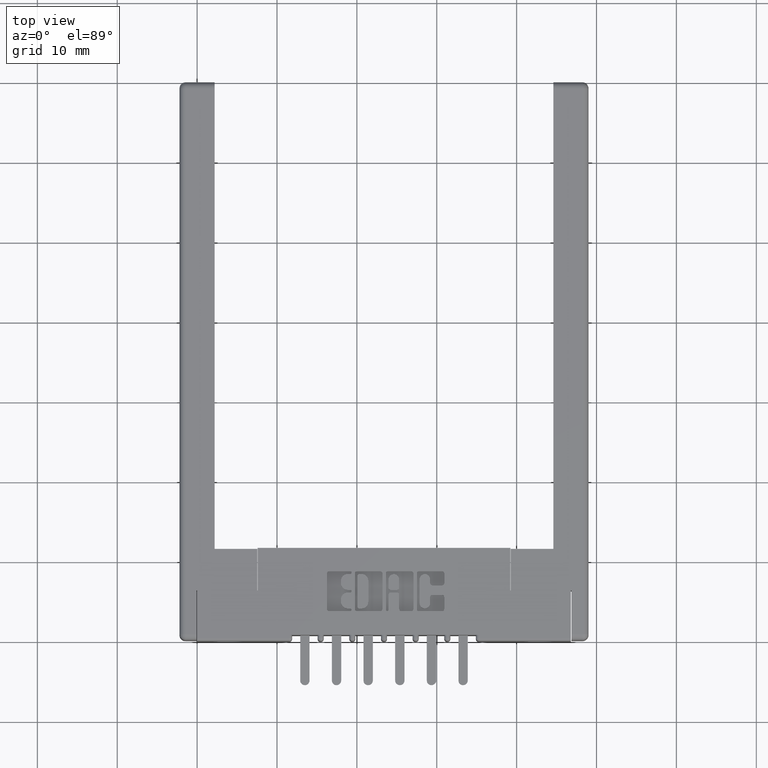
[diagram: clean part render]
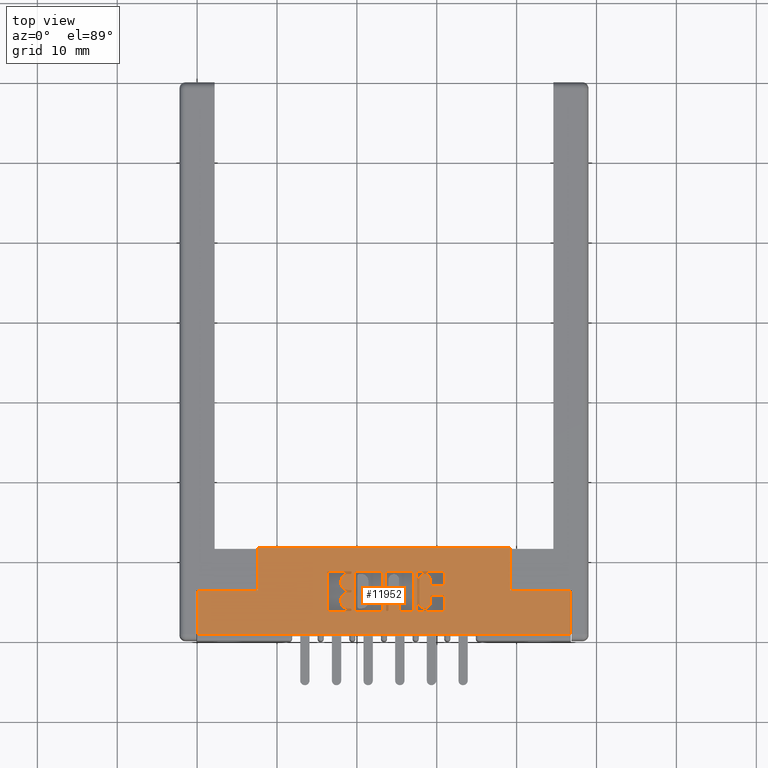
[diagram: same view with one face highlighted and labeled with its STEP entity id]
A machine part, top view. The second image highlights one B-rep face of the part: STEP entity #11952.
In plain terms, the highlighted planar face has unit normal (0, 0, -1).
Its self-contained STEP definition (entity closure, byte-faithful):
#7 = DIRECTION ( 'NONE',  ( 1.000000000000000000, 0.0000000000000000000, 0.0000000000000000000 ) ) ;
#25 = VERTEX_POINT ( 'NONE', #11827 ) ;
#96 = DIRECTION ( 'NONE',  ( -0.0000000000000000000, 0.0000000000000000000, 1.000000000000000000 ) ) ;
#103 = AXIS2_PLACEMENT_3D ( 'NONE', #5195, #5755, #12931 ) ;
#116 = VERTEX_POINT ( 'NONE', #2829 ) ;
#134 = CARTESIAN_POINT ( 'NONE',  ( 0.9394043816321276900, 0.3338410318342129300, 0.0000000000000000000 ) ) ;
#146 = AXIS2_PLACEMENT_3D ( 'NONE', #11146, #11671, #12352 ) ;
#172 = VERTEX_POINT ( 'NONE', #12545 ) ;
#173 = AXIS2_PLACEMENT_3D ( 'NONE', #8503, #12395, #12851 ) ;
#185 = VECTOR ( 'NONE', #6177, 39.37007874015748100 ) ;
#193 = AXIS2_PLACEMENT_3D ( 'NONE', #10360, #10257, #5744 ) ;
#202 = DIRECTION ( 'NONE',  ( 0.0000000000000000000, 0.0000000000000000000, -1.000000000000000000 ) ) ;
#205 = VERTEX_POINT ( 'NONE', #2532 ) ;
#220 = VECTOR ( 'NONE', #8466, 39.37007874015748100 ) ;
#233 = VECTOR ( 'NONE', #7161, 39.37007874015748100 ) ;
#336 = ORIENTED_EDGE ( 'NONE', *, *, #6337, .T. ) ;
#349 = VERTEX_POINT ( 'NONE', #3730 ) ;
#413 = VECTOR ( 'NONE', #7462, 39.37007874015748100 ) ;
#426 = VERTEX_POINT ( 'NONE', #3654 ) ;
#453 = ORIENTED_EDGE ( 'NONE', *, *, #6143, .T. ) ;
#457 = VERTEX_POINT ( 'NONE', #6432 ) ;
#465 = VERTEX_POINT ( 'NONE', #3961 ) ;
#471 = DIRECTION ( 'NONE',  ( -0.0000000000000000000, -1.000000000000000000, -0.0000000000000000000 ) ) ;
#480 = CARTESIAN_POINT ( 'NONE',  ( 0.6498421106199383500, 0.3436567020380355600, 0.0000000000000000000 ) ) ;
#484 = ORIENTED_EDGE ( 'NONE', *, *, #6292, .T. ) ;
#559 = CARTESIAN_POINT ( 'NONE',  ( 1.842000000000000700, 0.03100000000000000000, 0.0000000000000000000 ) ) ;
#574 = DIRECTION ( 'NONE',  ( -1.000000000000000000, -0.0000000000000000000, -0.0000000000000000000 ) ) ;
#594 = LINE ( 'NONE', #10863, #8683 ) ;
#599 = VERTEX_POINT ( 'NONE', #9982 ) ;
#609 = LINE ( 'NONE', #8518, #233 ) ;
#641 = DIRECTION ( 'NONE',  ( -1.000000000000000000, 0.0000000000000000000, 0.0000000000000000000 ) ) ;
#644 = AXIS2_PLACEMENT_3D ( 'NONE', #134, #96, #7 ) ;
#668 = VERTEX_POINT ( 'NONE', #7127 ) ;
#683 = CARTESIAN_POINT ( 'NONE',  ( 0.9025956183678624000, 0.1473432979619860000, 0.0000000000000000000 ) ) ;
#706 = CARTESIAN_POINT ( 'NONE',  ( 0.7541336065353102500, 0.2523709691426866400, 0.0000000000000000000 ) ) ;
#722 = CARTESIAN_POINT ( 'NONE',  ( 1.082222383097458900, 0.3338410318342129300, 0.0000000000000000000 ) ) ;
#741 = DIRECTION ( 'NONE',  ( -0.0000000000000000000, 0.0000000000000000000, 1.000000000000000000 ) ) ;
#762 = ORIENTED_EDGE ( 'NONE', *, *, #6196, .T. ) ;
#771 = DIRECTION ( 'NONE',  ( 1.000000000000000000, 0.0000000000000000000, 0.0000000000000000000 ) ) ;
#775 = CARTESIAN_POINT ( 'NONE',  ( 0.9025956183678282000, 0.3338410318342128200, 0.0000000000000000000 ) ) ;
#801 = LINE ( 'NONE', #3159, #6313 ) ;
#878 = VERTEX_POINT ( 'NONE', #9915 ) ;
#891 = AXIS2_PLACEMENT_3D ( 'NONE', #7805, #7832, #8188 ) ;
#893 = VERTEX_POINT ( 'NONE', #9743 ) ;
#944 = LINE ( 'NONE', #12159, #8950 ) ;
#989 = CARTESIAN_POINT ( 'NONE',  ( 0.9124112885716693100, 0.0000000000000000000, 0.0000000000000000000 ) ) ;
#997 = CIRCLE ( 'NONE', #9333, 0.009815670203805798900 ) ;
#1022 = VERTEX_POINT ( 'NONE', #12359 ) ;
#1052 = DIRECTION ( 'NONE',  ( -0.0000000000000000000, 0.0000000000000000000, 1.000000000000000000 ) ) ;
#1081 = ORIENTED_EDGE ( 'NONE', *, *, #6216, .F. ) ;
#1163 = VECTOR ( 'NONE', #8613, 39.37007874015748100 ) ;
#1285 = VERTEX_POINT ( 'NONE', #7746 ) ;
#1296 = AXIS2_PLACEMENT_3D ( 'NONE', #9518, #7518, #7556 ) ;
#1348 = VECTOR ( 'NONE', #3859, 39.37007874015748100 ) ;
#1358 = CARTESIAN_POINT ( 'NONE',  ( 1.544000000000000700, 0.2500000000000000600, 0.0000000000000000000 ) ) ;
#1381 = CARTESIAN_POINT ( 'NONE',  ( 1.065044960240807000, 0.1571589681657836700, 0.0000000000000000000 ) ) ;
#1428 = DIRECTION ( 'NONE',  ( 1.000000000000000000, 0.0000000000000000000, 0.0000000000000000000 ) ) ;
#1447 = CARTESIAN_POINT ( 'NONE',  ( 1.217678631909940400, 0.0000000000000000000, 0.0000000000000000000 ) ) ;
#1457 = AXIS2_PLACEMENT_3D ( 'NONE', #8520, #8504, #11856 ) ;
#1491 = VERTEX_POINT ( 'NONE', #2720 ) ;
#1518 = LINE ( 'NONE', #8148, #11983 ) ;
#1521 = VERTEX_POINT ( 'NONE', #6463 ) ;
#1534 = VECTOR ( 'NONE', #11922, 39.37007874015748100 ) ;
#1596 = ORIENTED_EDGE ( 'NONE', *, *, #6338, .F. ) ;
#1631 = VERTEX_POINT ( 'NONE', #11733 ) ;
#1655 = VERTEX_POINT ( 'NONE', #6540 ) ;
#1664 = VERTEX_POINT ( 'NONE', #12682 ) ;
#1685 = VECTOR ( 'NONE', #10314, 39.37007874015748100 ) ;
#1739 = CIRCLE ( 'NONE', #9937, 0.03141014465215624000 ) ;
#1799 = AXIS2_PLACEMENT_3D ( 'NONE', #7652, #8599, #8595 ) ;
#1800 = VERTEX_POINT ( 'NONE', #8047 ) ;
#1880 = DIRECTION ( 'NONE',  ( -0.0000000000000000000, 0.0000000000000000000, 1.000000000000000000 ) ) ;
#1908 = CIRCLE ( 'NONE', #1457, 0.006870969142657995000 ) ;
#1946 = VERTEX_POINT ( 'NONE', #12843 ) ;
#2007 = VERTEX_POINT ( 'NONE', #480 ) ;
#2065 = VERTEX_POINT ( 'NONE', #6090 ) ;
#2083 = ORIENTED_EDGE ( 'NONE', *, *, #6247, .F. ) ;
#2102 = LINE ( 'NONE', #5019, #10193 ) ;
#2118 = CIRCLE ( 'NONE', #10828, 0.03141014465217454400 ) ;
#2130 = CARTESIAN_POINT ( 'NONE',  ( 0.9025956183678624000, 0.1571589681657927500, 0.0000000000000000000 ) ) ;
#2211 = DIRECTION ( 'NONE',  ( 1.000000000000000000, 0.0000000000000000000, 0.0000000000000000000 ) ) ;
#2222 = DIRECTION ( 'NONE',  ( 1.000000000000000000, 0.0000000000000000000, 0.0000000000000000000 ) ) ;
#2238 = LINE ( 'NONE', #8793, #2622 ) ;
#2287 = CARTESIAN_POINT ( 'NONE',  ( 0.9124112885716693100, 0.1571589681657927500, 0.0000000000000000000 ) ) ;
#2328 = VERTEX_POINT ( 'NONE', #1381 ) ;
#2379 = VERTEX_POINT ( 'NONE', #11867 ) ;
#2400 = ORIENTED_EDGE ( 'NONE', *, *, #6322, .T. ) ;
#2484 = ORIENTED_EDGE ( 'NONE', *, *, #6306, .T. ) ;
#2496 = CARTESIAN_POINT ( 'NONE',  ( -0.0000000000000000000, 0.1473432979619860000, 0.0000000000000000000 ) ) ;
#2532 = CARTESIAN_POINT ( 'NONE',  ( 1.082222383097458900, 0.1571589681657927500, 0.0000000000000000000 ) ) ;
#2554 = AXIS2_PLACEMENT_3D ( 'NONE', #9555, #9442, #9705 ) ;
#2578 = VERTEX_POINT ( 'NONE', #10190 ) ;
#2579 = ORIENTED_EDGE ( 'NONE', *, *, #6285, .T. ) ;
#2593 = CARTESIAN_POINT ( 'NONE',  ( -0.0000000000000000000, 0.3299147637527385400, 0.0000000000000000000 ) ) ;
#2622 = VECTOR ( 'NONE', #8688, 39.37007874015748100 ) ;
#2635 = VERTEX_POINT ( 'NONE', #8713 ) ;
#2662 = LINE ( 'NONE', #12897, #12491 ) ;
#2689 = ORIENTED_EDGE ( 'NONE', *, *, #5813, .T. ) ;
#2702 = DIRECTION ( 'NONE',  ( -1.000000000000000000, -3.427012734660361200E-014, 0.0000000000000000000 ) ) ;
#2720 = CARTESIAN_POINT ( 'NONE',  ( 0.0000000000000000000, 0.2500000000000000600, 0.0000000000000000000 ) ) ;
#2723 = CARTESIAN_POINT ( 'NONE',  ( 1.065044960240807000, 0.3338410318342037700, 0.0000000000000000000 ) ) ;
#2756 = ORIENTED_EDGE ( 'NONE', *, *, #5517, .F. ) ;
#2829 = CARTESIAN_POINT ( 'NONE',  ( 0.6400264404161156700, 0.1571589681657927500, 0.0000000000000000000 ) ) ;
#2864 = AXIS2_PLACEMENT_3D ( 'NONE', #8931, #9181, #9199 ) ;
#2955 = ORIENTED_EDGE ( 'NONE', *, *, #5516, .F. ) ;
#2983 = ORIENTED_EDGE ( 'NONE', *, *, #5791, .T. ) ;
#2995 = CIRCLE ( 'NONE', #8002, 0.009815670203787086500 ) ;
#3030 = CIRCLE ( 'NONE', #2554, 0.009815670203796920600 ) ;
#3034 = AXIS2_PLACEMENT_3D ( 'NONE', #6869, #10535, #10559 ) ;
#3046 = ORIENTED_EDGE ( 'NONE', *, *, #5796, .F. ) ;
#3047 = VECTOR ( 'NONE', #12448, 39.37007874015748100 ) ;
#3159 = CARTESIAN_POINT ( 'NONE',  ( 1.842000000000000700, 0.4600000000000000200, 0.0000000000000000000 ) ) ;
#3226 = VERTEX_POINT ( 'NONE', #12732 ) ;
#3229 = VERTEX_POINT ( 'NONE', #12965 ) ;
#3326 = ORIENTED_EDGE ( 'NONE', *, *, #5787, .F. ) ;
#3370 = CIRCLE ( 'NONE', #7601, 0.009815670203788042300 ) ;
#3435 = ORIENTED_EDGE ( 'NONE', *, *, #5706, .F. ) ;
#3487 = CARTESIAN_POINT ( 'NONE',  ( 0.0000000000000000000, 0.4600000000000000200, 0.0000000000000000000 ) ) ;
#3535 = DIRECTION ( 'NONE',  ( -0.0000000000000000000, -1.000000000000000000, -0.0000000000000000000 ) ) ;
#3550 = ORIENTED_EDGE ( 'NONE', *, *, #5704, .F. ) ;
#3563 = VERTEX_POINT ( 'NONE', #10616 ) ;
#3573 = ORIENTED_EDGE ( 'NONE', *, *, #5723, .F. ) ;
#3591 = LINE ( 'NONE', #989, #413 ) ;
#3646 = ORIENTED_EDGE ( 'NONE', *, *, #5749, .F. ) ;
#3654 = CARTESIAN_POINT ( 'NONE',  ( 1.544000000000000700, 0.4600000000000000200, 0.0000000000000000000 ) ) ;
#3661 = AXIS2_PLACEMENT_3D ( 'NONE', #11896, #7701, #8430 ) ;
#3708 = DIRECTION ( 'NONE',  ( 1.000000000000000000, 0.0000000000000000000, 0.0000000000000000000 ) ) ;
#3712 = VERTEX_POINT ( 'NONE', #7749 ) ;
#3730 = CARTESIAN_POINT ( 'NONE',  ( 1.148478156973179200, 0.1873421540424558300, 0.0000000000000000000 ) ) ;
#3753 = ORIENTED_EDGE ( 'NONE', *, *, #5747, .T. ) ;
#3761 = DIRECTION ( 'NONE',  ( -0.0000000000000000000, 0.0000000000000000000, 1.000000000000000000 ) ) ;
#3765 = VECTOR ( 'NONE', #7290, 39.37007874015748100 ) ;
#3775 = VERTEX_POINT ( 'NONE', #6795 ) ;
#3807 = ORIENTED_EDGE ( 'NONE', *, *, #5762, .T. ) ;
#3841 = ORIENTED_EDGE ( 'NONE', *, *, #5763, .F. ) ;
#3858 = DIRECTION ( 'NONE',  ( -0.0000000000000000000, 0.0000000000000000000, 1.000000000000000000 ) ) ;
#3859 = DIRECTION ( 'NONE',  ( 1.000000000000000000, 0.0000000000000000000, 0.0000000000000000000 ) ) ;
#3924 = VECTOR ( 'NONE', #3535, 39.37007874015748100 ) ;
#3941 = ORIENTED_EDGE ( 'NONE', *, *, #5689, .F. ) ;
#3954 = ORIENTED_EDGE ( 'NONE', *, *, #5766, .F. ) ;
#3961 = CARTESIAN_POINT ( 'NONE',  ( 0.9025956183678963700, 0.3436567020380538200, 0.0000000000000000000 ) ) ;
#3972 = ORIENTED_EDGE ( 'NONE', *, *, #5368, .F. ) ;
#3990 = VERTEX_POINT ( 'NONE', #12166 ) ;
#4031 = AXIS2_PLACEMENT_3D ( 'NONE', #6275, #6326, #6647 ) ;
#4034 = ORIENTED_EDGE ( 'NONE', *, *, #5563, .T. ) ;
#4050 = VERTEX_POINT ( 'NONE', #10111 ) ;
#4097 = ORIENTED_EDGE ( 'NONE', *, *, #5529, .F. ) ;
#4169 = ORIENTED_EDGE ( 'NONE', *, *, #5621, .F. ) ;
#4240 = ORIENTED_EDGE ( 'NONE', *, *, #5620, .F. ) ;
#4248 = ORIENTED_EDGE ( 'NONE', *, *, #5602, .T. ) ;
#4304 = ORIENTED_EDGE ( 'NONE', *, *, #5577, .F. ) ;
#4320 = CARTESIAN_POINT ( 'NONE',  ( 0.6498421106199224800, 0.1571589681657927500, 0.0000000000000000000 ) ) ;
#4322 = VERTEX_POINT ( 'NONE', #5779 ) ;
#4350 = ORIENTED_EDGE ( 'NONE', *, *, #5623, .F. ) ;
#4355 = DIRECTION ( 'NONE',  ( 1.000000000000000000, 0.0000000000000000000, 0.0000000000000000000 ) ) ;
#4374 = DIRECTION ( 'NONE',  ( 0.0000000000000000000, -1.000000000000000000, 0.0000000000000000000 ) ) ;
#4408 = CARTESIAN_POINT ( 'NONE',  ( 1.095964321382818700, 0.1873421540424558300, 0.0000000000000000000 ) ) ;
#4455 = ORIENTED_EDGE ( 'NONE', *, *, #5637, .F. ) ;
#4464 = ORIENTED_EDGE ( 'NONE', *, *, #5636, .F. ) ;
#4472 = DIRECTION ( 'NONE',  ( -1.000000000000000000, 0.0000000000000000000, 0.0000000000000000000 ) ) ;
#4513 = CARTESIAN_POINT ( 'NONE',  ( 0.0000000000000000000, 0.3436567020380538200, 0.0000000000000000000 ) ) ;
#4541 = VERTEX_POINT ( 'NONE', #12934 ) ;
#4561 = AXIS2_PLACEMENT_3D ( 'NONE', #6259, #7962, #4787 ) ;
#4565 = ORIENTED_EDGE ( 'NONE', *, *, #5311, .F. ) ;
#4579 = AXIS2_PLACEMENT_3D ( 'NONE', #8800, #3761, #3708 ) ;
#4589 = ORIENTED_EDGE ( 'NONE', *, *, #5831, .F. ) ;
#4605 = ORIENTED_EDGE ( 'NONE', *, *, #5843, .F. ) ;
#4606 = CIRCLE ( 'NONE', #644, 0.009815670203796511200 ) ;
#4623 = VECTOR ( 'NONE', #12047, 39.37007874015748100 ) ;
#4661 = CARTESIAN_POINT ( 'NONE',  ( 1.148478156973166100, 0.0000000000000000000, 0.0000000000000000000 ) ) ;
#4692 = CARTESIAN_POINT ( 'NONE',  ( 0.9295887114283312200, 0.3338410318342129300, 0.0000000000000000000 ) ) ;
#4747 = LINE ( 'NONE', #10369, #1685 ) ;
#4787 = DIRECTION ( 'NONE',  ( 1.000000000000000000, 0.0000000000000000000, 0.0000000000000000000 ) ) ;
#4794 = LINE ( 'NONE', #10006, #11875 ) ;
#4887 = VERTEX_POINT ( 'NONE', #7990 ) ;
#4905 = CIRCLE ( 'NONE', #1799, 0.009815670203806754800 ) ;
#4916 = ORIENTED_EDGE ( 'NONE', *, *, #5927, .F. ) ;
#4973 = ORIENTED_EDGE ( 'NONE', *, *, #5929, .T. ) ;
#4981 = DIRECTION ( 'NONE',  ( 1.000000000000000000, 0.0000000000000000000, 0.0000000000000000000 ) ) ;
#5004 = ORIENTED_EDGE ( 'NONE', *, *, #5888, .F. ) ;
#5019 = CARTESIAN_POINT ( 'NONE',  ( 0.7769550397591695700, 0.0000000000000000000, 0.0000000000000000000 ) ) ;
#5042 = AXIS2_PLACEMENT_3D ( 'NONE', #5251, #5591, #5574 ) ;
#5050 = VERTEX_POINT ( 'NONE', #5579 ) ;
#5057 = EDGE_LOOP ( 'NONE', ( #4916, #4973, #8211, #9965, #9276, #7628, #9318, #6042 ) ) ;
#5096 = LINE ( 'NONE', #8812, #1348 ) ;
#5112 = VECTOR ( 'NONE', #9298, 39.37007874015748100 ) ;
#5160 = CARTESIAN_POINT ( 'NONE',  ( 1.207862961706134500, 0.1473432979619860000, 0.0000000000000000000 ) ) ;
#5195 = CARTESIAN_POINT ( 'NONE',  ( 1.158293827176977600, 0.2842718973050480400, 0.0000000000000000000 ) ) ;
#5224 = VECTOR ( 'NONE', #10065, 39.37007874015748100 ) ;
#5231 = CARTESIAN_POINT ( 'NONE',  ( 0.9394043816321276900, 0.3436567020380094100, 0.0000000000000000000 ) ) ;
#5250 = AXIS2_PLACEMENT_3D ( 'NONE', #2130, #1880, #2211 ) ;
#5251 = CARTESIAN_POINT ( 'NONE',  ( 0.7867707099629762700, 0.1571589681657927500, 0.0000000000000000000 ) ) ;
#5252 = EDGE_LOOP ( 'NONE', ( #453, #7577, #762, #1081, #5936, #2083, #9673, #2579, #484, #2484, #2400, #5761, #336, #1596 ) ) ;
#5263 = LINE ( 'NONE', #12420, #9700 ) ;
#5286 = EDGE_CURVE ( 'NONE', #6988, #1946, #10340, .T. ) ;
#5311 = EDGE_CURVE ( 'NONE', #5358, #599, #7463, .T. ) ;
#5338 = FACE_BOUND ( 'NONE', #5252, .T. ) ;
#5358 = VERTEX_POINT ( 'NONE', #12551 ) ;
#5368 = EDGE_CURVE ( 'NONE', #7443, #6490, #11449, .T. ) ;
#5409 = LINE ( 'NONE', #2496, #12594 ) ;
#5420 = VECTOR ( 'NONE', #9479, 39.37007874015748100 ) ;
#5456 = VERTEX_POINT ( 'NONE', #6579 ) ;
#5495 = EDGE_CURVE ( 'NONE', #1631, #3563, #12354, .T. ) ;
#5516 = EDGE_CURVE ( 'NONE', #7020, #1631, #4747, .T. ) ;
#5517 = EDGE_CURVE ( 'NONE', #2578, #7020, #12574, .T. ) ;
#5525 = VECTOR ( 'NONE', #10553, 39.37007874015748100 ) ;
#5529 = EDGE_CURVE ( 'NONE', #3229, #2578, #7006, .T. ) ;
#5559 = VECTOR ( 'NONE', #8384, 39.37007874015748100 ) ;
#5563 = EDGE_CURVE ( 'NONE', #3229, #1022, #7313, .T. ) ;
#5574 = DIRECTION ( 'NONE',  ( 1.000000000000000000, 0.0000000000000000000, 0.0000000000000000000 ) ) ;
#5577 = EDGE_CURVE ( 'NONE', #5840, #1022, #944, .T. ) ;
#5579 = CARTESIAN_POINT ( 'NONE',  ( 0.7406370600051257500, 0.3299147637527385400, 0.0000000000000000000 ) ) ;
#5591 = DIRECTION ( 'NONE',  ( -0.0000000000000000000, 0.0000000000000000000, 1.000000000000000000 ) ) ;
#5602 = EDGE_CURVE ( 'NONE', #5840, #349, #6430, .T. ) ;
#5620 = EDGE_CURVE ( 'NONE', #6412, #349, #11295, .T. ) ;
#5621 = EDGE_CURVE ( 'NONE', #3990, #6412, #3370, .T. ) ;
#5623 = EDGE_CURVE ( 'NONE', #7978, #3990, #6129, .T. ) ;
#5636 = EDGE_CURVE ( 'NONE', #4322, #7978, #2995, .T. ) ;
#5637 = EDGE_CURVE ( 'NONE', #457, #4322, #8359, .T. ) ;
#5639 = EDGE_CURVE ( 'NONE', #7720, #457, #8054, .T. ) ;
#5656 = EDGE_CURVE ( 'NONE', #3226, #7720, #10330, .T. ) ;
#5660 = VERTEX_POINT ( 'NONE', #10791 ) ;
#5676 = EDGE_CURVE ( 'NONE', #205, #3226, #4905, .T. ) ;
#5687 = EDGE_CURVE ( 'NONE', #6003, #205, #2238, .T. ) ;
#5689 = EDGE_CURVE ( 'NONE', #9510, #6003, #7755, .T. ) ;
#5698 = CIRCLE ( 'NONE', #5250, 0.009815670203806891800 ) ;
#5699 = VERTEX_POINT ( 'NONE', #10658 ) ;
#5704 = EDGE_CURVE ( 'NONE', #9794, #9510, #9998, .T. ) ;
#5706 = EDGE_CURVE ( 'NONE', #5699, #9794, #12220, .T. ) ;
#5721 = CARTESIAN_POINT ( 'NONE',  ( 0.9958444853039849500, 0.1571589681657906400, 0.0000000000000000000 ) ) ;
#5723 = EDGE_CURVE ( 'NONE', #3563, #5699, #7940, .T. ) ;
#5744 = DIRECTION ( 'NONE',  ( 1.000000000000000000, 0.0000000000000000000, 0.0000000000000000000 ) ) ;
#5747 = EDGE_CURVE ( 'NONE', #5050, #3775, #10542, .T. ) ;
#5749 = EDGE_CURVE ( 'NONE', #6304, #3775, #10206, .T. ) ;
#5755 = DIRECTION ( 'NONE',  ( -0.0000000000000000000, 0.0000000000000000000, 1.000000000000000000 ) ) ;
#5761 = ORIENTED_EDGE ( 'NONE', *, *, #6325, .F. ) ;
#5762 = EDGE_CURVE ( 'NONE', #6304, #878, #2118, .T. ) ;
#5763 = EDGE_CURVE ( 'NONE', #6490, #878, #12385, .T. ) ;
#5766 = EDGE_CURVE ( 'NONE', #1800, #7443, #7645, .T. ) ;
#5779 = CARTESIAN_POINT ( 'NONE',  ( 1.217678631909940400, 0.2170345564089732300, 0.0000000000000000000 ) ) ;
#5787 = EDGE_CURVE ( 'NONE', #5921, #1800, #12132, .T. ) ;
#5791 = EDGE_CURVE ( 'NONE', #5921, #2065, #1739, .T. ) ;
#5793 = CARTESIAN_POINT ( 'NONE',  ( 1.207862961706156900, 0.2268502266127603600, 0.0000000000000000000 ) ) ;
#5796 = EDGE_CURVE ( 'NONE', #2635, #2065, #4794, .T. ) ;
#5807 = AXIS2_PLACEMENT_3D ( 'NONE', #775, #741, #771 ) ;
#5813 = EDGE_CURVE ( 'NONE', #2635, #3712, #7044, .T. ) ;
#5824 = PLANE ( 'NONE',  #12169 ) ;
#5828 = VECTOR ( 'NONE', #641, 39.37007874015748100 ) ;
#5831 = EDGE_CURVE ( 'NONE', #599, #3712, #6747, .T. ) ;
#5840 = VERTEX_POINT ( 'NONE', #4408 ) ;
#5843 = EDGE_CURVE ( 'NONE', #5456, #5358, #11608, .T. ) ;
#5847 = EDGE_CURVE ( 'NONE', #1285, #5456, #6470, .T. ) ;
#5849 = EDGE_CURVE ( 'NONE', #116, #1285, #997, .T. ) ;
#5857 = LINE ( 'NONE', #7046, #220 ) ;
#5865 = ORIENTED_EDGE ( 'NONE', *, *, #6012, .F. ) ;
#5867 = EDGE_CURVE ( 'NONE', #7829, #116, #609, .T. ) ;
#5871 = LINE ( 'NONE', #11520, #3047 ) ;
#5872 = EDGE_CURVE ( 'NONE', #2007, #7829, #11333, .T. ) ;
#5883 = ORIENTED_EDGE ( 'NONE', *, *, #5867, .F. ) ;
#5888 = EDGE_CURVE ( 'NONE', #1946, #2007, #5871, .T. ) ;
#5891 = EDGE_CURVE ( 'NONE', #4541, #6988, #10703, .T. ) ;
#5921 = VERTEX_POINT ( 'NONE', #12909 ) ;
#5923 = EDGE_CURVE ( 'NONE', #5050, #4541, #12713, .T. ) ;
#5927 = EDGE_CURVE ( 'NONE', #6560, #1664, #8096, .T. ) ;
#5929 = EDGE_CURVE ( 'NONE', #6560, #426, #2662, .T. ) ;
#5936 = ORIENTED_EDGE ( 'NONE', *, *, #6235, .T. ) ;
#5944 = EDGE_CURVE ( 'NONE', #5660, #426, #5263, .T. ) ;
#5947 = EDGE_CURVE ( 'NONE', #1521, #5660, #7490, .T. ) ;
#5964 = EDGE_CURVE ( 'NONE', #1491, #1521, #12251, .T. ) ;
#5982 = EDGE_CURVE ( 'NONE', #1491, #1655, #6595, .T. ) ;
#5995 = EDGE_CURVE ( 'NONE', #4050, #1655, #11474, .T. ) ;
#5998 = EDGE_CURVE ( 'NONE', #1664, #4050, #801, .T. ) ;
#6003 = VERTEX_POINT ( 'NONE', #722 ) ;
#6008 = AXIS2_PLACEMENT_3D ( 'NONE', #9446, #9426, #9415 ) ;
#6012 = EDGE_CURVE ( 'NONE', #9808, #465, #9135, .T. ) ;
#6027 = EDGE_CURVE ( 'NONE', #12701, #9808, #3591, .T. ) ;
#6042 = ORIENTED_EDGE ( 'NONE', *, *, #5998, .F. ) ;
#6047 = EDGE_CURVE ( 'NONE', #8190, #12701, #5698, .T. ) ;
#6073 = EDGE_CURVE ( 'NONE', #172, #8190, #5409, .T. ) ;
#6086 = EDGE_CURVE ( 'NONE', #25, #172, #7933, .T. ) ;
#6090 = CARTESIAN_POINT ( 'NONE',  ( 0.7092269153529280300, 0.2072188862052033700, 0.0000000000000000000 ) ) ;
#6106 = EDGE_CURVE ( 'NONE', #2379, #25, #2102, .T. ) ;
#6125 = CARTESIAN_POINT ( 'NONE',  ( 1.148478156973179200, 0.0000000000000000000, 0.0000000000000000000 ) ) ;
#6129 = LINE ( 'NONE', #7819, #5828 ) ;
#6140 = EDGE_CURVE ( 'NONE', #7183, #2379, #12376, .T. ) ;
#6141 = EDGE_CURVE ( 'NONE', #465, #7183, #12124, .T. ) ;
#6143 = EDGE_CURVE ( 'NONE', #9975, #10445, #5096, .T. ) ;
#6156 = ORIENTED_EDGE ( 'NONE', *, *, #5676, .F. ) ;
#6157 = CIRCLE ( 'NONE', #3034, 0.009815670203796237100 ) ;
#6162 = EDGE_CURVE ( 'NONE', #9851, #10445, #11862, .T. ) ;
#6177 = DIRECTION ( 'NONE',  ( 0.0000000000000000000, -1.000000000000000000, 0.0000000000000000000 ) ) ;
#6196 = EDGE_CURVE ( 'NONE', #9851, #2328, #594, .T. ) ;
#6216 = EDGE_CURVE ( 'NONE', #9482, #2328, #6157, .T. ) ;
#6235 = EDGE_CURVE ( 'NONE', #9482, #9372, #5857, .T. ) ;
#6247 = EDGE_CURVE ( 'NONE', #7536, #9372, #10689, .T. ) ;
#6259 = CARTESIAN_POINT ( 'NONE',  ( 1.207862961706167400, 0.2842718973050414900, 0.0000000000000000000 ) ) ;
#6268 = VERTEX_POINT ( 'NONE', #8986 ) ;
#6273 = EDGE_CURVE ( 'NONE', #7536, #6268, #10355, .T. ) ;
#6275 = CARTESIAN_POINT ( 'NONE',  ( 1.055229290037011900, 0.3338410318342132100, 0.0000000000000000000 ) ) ;
#6285 = EDGE_CURVE ( 'NONE', #6268, #893, #3030, .T. ) ;
#6292 = EDGE_CURVE ( 'NONE', #893, #4887, #12481, .T. ) ;
#6304 = VERTEX_POINT ( 'NONE', #7637 ) ;
#6306 = EDGE_CURVE ( 'NONE', #4887, #7007, #10026, .T. ) ;
#6313 = VECTOR ( 'NONE', #471, 39.37007874015748100 ) ;
#6322 = EDGE_CURVE ( 'NONE', #7007, #12010, #1518, .T. ) ;
#6325 = EDGE_CURVE ( 'NONE', #668, #12010, #1908, .T. ) ;
#6326 = DIRECTION ( 'NONE',  ( -0.0000000000000000000, 0.0000000000000000000, 1.000000000000000000 ) ) ;
#6337 = EDGE_CURVE ( 'NONE', #668, #10205, #12242, .T. ) ;
#6338 = EDGE_CURVE ( 'NONE', #9975, #10205, #4606, .T. ) ;
#6412 = VERTEX_POINT ( 'NONE', #8037 ) ;
#6430 = CIRCLE ( 'NONE', #3661, 0.02625691779518022500 ) ;
#6432 = CARTESIAN_POINT ( 'NONE',  ( 1.217678631909940400, 0.1571589681657857800, 0.0000000000000000000 ) ) ;
#6463 = CARTESIAN_POINT ( 'NONE',  ( 0.2979999999999999900, 0.2500000000000000600, 0.0000000000000000000 ) ) ;
#6470 = LINE ( 'NONE', #7612, #3765 ) ;
#6490 = VERTEX_POINT ( 'NONE', #706 ) ;
#6540 = CARTESIAN_POINT ( 'NONE',  ( 0.0000000000000000000, 0.03100000000000000000, 0.0000000000000000000 ) ) ;
#6560 = VERTEX_POINT ( 'NONE', #1358 ) ;
#6579 = CARTESIAN_POINT ( 'NONE',  ( 0.7541336064154146000, 0.1473432979619885300, 0.0000000000000000000 ) ) ;
#6595 = LINE ( 'NONE', #3487, #3924 ) ;
#6647 = DIRECTION ( 'NONE',  ( 1.000000000000000000, 0.0000000000000000000, 0.0000000000000000000 ) ) ;
#6747 = LINE ( 'NONE', #7458, #8992 ) ;
#6763 = CARTESIAN_POINT ( 'NONE',  ( 0.0000000000000000000, 0.4600000000000000200, 0.0000000000000000000 ) ) ;
#6795 = CARTESIAN_POINT ( 'NONE',  ( 0.7092269153529097100, 0.2985046191005226200, 0.0000000000000000000 ) ) ;
#6869 = CARTESIAN_POINT ( 'NONE',  ( 1.055229290037010800, 0.1571589681657836700, 0.0000000000000000000 ) ) ;
#6980 = CARTESIAN_POINT ( 'NONE',  ( 1.158293827176977600, 0.2744562271012364100, 0.0000000000000000000 ) ) ;
#6988 = VERTEX_POINT ( 'NONE', #8100 ) ;
#6994 = CARTESIAN_POINT ( 'NONE',  ( 0.9958444853039849500, 0.0000000000000000000, 0.0000000000000000000 ) ) ;
#7006 = LINE ( 'NONE', #4661, #9822 ) ;
#7007 = VERTEX_POINT ( 'NONE', #12862 ) ;
#7020 = VERTEX_POINT ( 'NONE', #6980 ) ;
#7031 = VECTOR ( 'NONE', #4472, 39.37007874015748100 ) ;
#7044 = CIRCLE ( 'NONE', #9748, 0.03141014465218178200 ) ;
#7046 = CARTESIAN_POINT ( 'NONE',  ( 0.0000000000000000000, 0.1473432979619874200, 0.0000000000000000000 ) ) ;
#7110 = DIRECTION ( 'NONE',  ( -0.0000000000000000000, 0.0000000000000000000, 1.000000000000000000 ) ) ;
#7122 = DIRECTION ( 'NONE',  ( 1.000000000000000000, 0.0000000000000000000, 0.0000000000000000000 ) ) ;
#7127 = CARTESIAN_POINT ( 'NONE',  ( 0.9295887114283312200, 0.1542142671046507800, 0.0000000000000000000 ) ) ;
#7138 = VECTOR ( 'NONE', #10231, 39.37007874015748100 ) ;
#7161 = DIRECTION ( 'NONE',  ( 0.0000000000000000000, -1.000000000000000000, 0.0000000000000000000 ) ) ;
#7167 = ORIENTED_EDGE ( 'NONE', *, *, #5639, .F. ) ;
#7183 = VERTEX_POINT ( 'NONE', #7275 ) ;
#7197 = ORIENTED_EDGE ( 'NONE', *, *, #5687, .F. ) ;
#7212 = DIRECTION ( 'NONE',  ( -0.0000000000000000000, 0.0000000000000000000, 1.000000000000000000 ) ) ;
#7231 = DIRECTION ( 'NONE',  ( 1.000000000000000000, 0.0000000000000000000, 0.0000000000000000000 ) ) ;
#7275 = CARTESIAN_POINT ( 'NONE',  ( 0.7867707099630104600, 0.3436567020380538200, 0.0000000000000000000 ) ) ;
#7290 = DIRECTION ( 'NONE',  ( 1.000000000000000000, 6.876017002796124400E-015, 0.0000000000000000000 ) ) ;
#7305 = EDGE_LOOP ( 'NONE', ( #3753, #3646, #3807, #3841, #3972, #3954, #3326, #2983, #3046, #2689, #4589, #4565, #4605, #7866, #12711, #5883, #10622, #5004, #9830, #10173, #10274 ) ) ;
#7313 = CIRCLE ( 'NONE', #10925, 0.02625691779517367100 ) ;
#7409 = CARTESIAN_POINT ( 'NONE',  ( 1.122221239177992400, 0.3036578459575323700, 0.0000000000000000000 ) ) ;
#7443 = VERTEX_POINT ( 'NONE', #7753 ) ;
#7458 = CARTESIAN_POINT ( 'NONE',  ( -1.915567620543394800E-014, 0.1610852362472233500, 0.0000000000000000000 ) ) ;
#7462 = DIRECTION ( 'NONE',  ( 0.0000000000000000000, 1.000000000000000000, -0.0000000000000000000 ) ) ;
#7463 = CIRCLE ( 'NONE', #173, 0.006870969142662229500 ) ;
#7477 = VECTOR ( 'NONE', #2702, 39.37007874015748100 ) ;
#7489 = ORIENTED_EDGE ( 'NONE', *, *, #5495, .F. ) ;
#7490 = LINE ( 'NONE', #12311, #4623 ) ;
#7518 = DIRECTION ( 'NONE',  ( -0.0000000000000000000, 0.0000000000000000000, 1.000000000000000000 ) ) ;
#7528 = CARTESIAN_POINT ( 'NONE',  ( 0.7541336065353357900, 0.1542142671046507800, 0.0000000000000000000 ) ) ;
#7536 = VERTEX_POINT ( 'NONE', #5721 ) ;
#7556 = DIRECTION ( 'NONE',  ( 1.000000000000000000, 0.0000000000000000000, 0.0000000000000000000 ) ) ;
#7574 = DIRECTION ( 'NONE',  ( 0.0000000000000000000, 1.000000000000000000, -0.0000000000000000000 ) ) ;
#7577 = ORIENTED_EDGE ( 'NONE', *, *, #6162, .F. ) ;
#7601 = AXIS2_PLACEMENT_3D ( 'NONE', #8558, #1052, #1428 ) ;
#7612 = CARTESIAN_POINT ( 'NONE',  ( -1.013135022034653000E-015, 0.1473432979619833400, 0.0000000000000000000 ) ) ;
#7628 = ORIENTED_EDGE ( 'NONE', *, *, #5982, .T. ) ;
#7637 = CARTESIAN_POINT ( 'NONE',  ( 0.7092269153529097100, 0.2837811137948611500, 0.0000000000000000000 ) ) ;
#7645 = CIRCLE ( 'NONE', #10790, 0.006870969142663458500 ) ;
#7652 = CARTESIAN_POINT ( 'NONE',  ( 1.092038053301265700, 0.1571589681657927500, 0.0000000000000000000 ) ) ;
#7681 = CARTESIAN_POINT ( 'NONE',  ( 0.7541336065353102500, 0.2455000000000231700, 0.0000000000000000000 ) ) ;
#7701 = DIRECTION ( 'NONE',  ( -0.0000000000000000000, 0.0000000000000000000, 1.000000000000000000 ) ) ;
#7720 = VERTEX_POINT ( 'NONE', #5160 ) ;
#7725 = DIRECTION ( 'NONE',  ( 1.000000000000000000, 0.0000000000000000000, 0.0000000000000000000 ) ) ;
#7731 = DIRECTION ( 'NONE',  ( -1.000000000000000000, 0.0000000000000000000, -0.0000000000000000000 ) ) ;
#7746 = CARTESIAN_POINT ( 'NONE',  ( 0.6498421106199189200, 0.1473432979619878100, 0.0000000000000000000 ) ) ;
#7749 = CARTESIAN_POINT ( 'NONE',  ( 0.7406370600051098700, 0.1610852362473114100, 0.0000000000000000000 ) ) ;
#7753 = CARTESIAN_POINT ( 'NONE',  ( 0.7610045756779737500, 0.2455000000000231700, 0.0000000000000000000 ) ) ;
#7755 = CIRCLE ( 'NONE', #8973, 0.009815670203840767500 ) ;
#7781 = VECTOR ( 'NONE', #9053, 39.37007874015748100 ) ;
#7791 = VECTOR ( 'NONE', #10389, 39.37007874015748100 ) ;
#7805 = CARTESIAN_POINT ( 'NONE',  ( 0.9531463199174504700, 0.2288133606535484000, 0.0000000000000000000 ) ) ;
#7819 = CARTESIAN_POINT ( 'NONE',  ( 0.0000000000000000000, 0.2268502266127603600, 0.0000000000000000000 ) ) ;
#7829 = VERTEX_POINT ( 'NONE', #9159 ) ;
#7832 = DIRECTION ( 'NONE',  ( -0.0000000000000000000, 0.0000000000000000000, 1.000000000000000000 ) ) ;
#7866 = ORIENTED_EDGE ( 'NONE', *, *, #5847, .F. ) ;
#7867 = FACE_BOUND ( 'NONE', #7305, .T. ) ;
#7891 = CARTESIAN_POINT ( 'NONE',  ( 1.055229290037014200, 0.3436567020380094100, 0.0000000000000000000 ) ) ;
#7903 = DIRECTION ( 'NONE',  ( 0.0000000000000000000, -1.000000000000000000, 0.0000000000000000000 ) ) ;
#7933 = CIRCLE ( 'NONE', #5042, 0.009815670203806754800 ) ;
#7940 = LINE ( 'NONE', #9295, #5420 ) ;
#7962 = DIRECTION ( 'NONE',  ( -0.0000000000000000000, 0.0000000000000000000, 1.000000000000000000 ) ) ;
#7978 = VERTEX_POINT ( 'NONE', #5793 ) ;
#7990 = CARTESIAN_POINT ( 'NONE',  ( 0.9531463199174504700, 0.2386290308573514900, 0.0000000000000000000 ) ) ;
#8002 = AXIS2_PLACEMENT_3D ( 'NONE', #12283, #12460, #11756 ) ;
#8032 = CARTESIAN_POINT ( 'NONE',  ( 1.005660155507786000, 0.1473432979619874200, 0.0000000000000000000 ) ) ;
#8037 = CARTESIAN_POINT ( 'NONE',  ( 1.148478156973179200, 0.2170345564089715100, 0.0000000000000000000 ) ) ;
#8047 = CARTESIAN_POINT ( 'NONE',  ( 0.7541336064153890700, 0.2386290308573596500, 0.0000000000000000000 ) ) ;
#8054 = CIRCLE ( 'NONE', #1296, 0.009815670203806345400 ) ;
#8096 = LINE ( 'NONE', #10386, #5559 ) ;
#8100 = CARTESIAN_POINT ( 'NONE',  ( 0.7610045756779999500, 0.3367857328953891000, 0.0000000000000000000 ) ) ;
#8133 = EDGE_LOOP ( 'NONE', ( #5865, #8292, #9102, #8404, #11562, #8308, #10384, #8974 ) ) ;
#8148 = CARTESIAN_POINT ( 'NONE',  ( 0.9433306497136472200, 0.0000000000000000000, 0.0000000000000000000 ) ) ;
#8184 = DIRECTION ( 'NONE',  ( 0.0000000000000000000, -1.000000000000000000, 0.0000000000000000000 ) ) ;
#8188 = DIRECTION ( 'NONE',  ( 1.000000000000000000, 0.0000000000000000000, 0.0000000000000000000 ) ) ;
#8190 = VERTEX_POINT ( 'NONE', #683 ) ;
#8211 = ORIENTED_EDGE ( 'NONE', *, *, #5944, .F. ) ;
#8292 = ORIENTED_EDGE ( 'NONE', *, *, #6027, .F. ) ;
#8303 = CARTESIAN_POINT ( 'NONE',  ( 0.6498421106199383500, 0.3338410318342129300, 0.0000000000000000000 ) ) ;
#8308 = ORIENTED_EDGE ( 'NONE', *, *, #6106, .F. ) ;
#8352 = CARTESIAN_POINT ( 'NONE',  ( 0.9295887114283312200, 0.0000000000000000000, 0.0000000000000000000 ) ) ;
#8359 = LINE ( 'NONE', #1447, #5525 ) ;
#8364 = DIRECTION ( 'NONE',  ( -0.0000000000000000000, 0.0000000000000000000, 1.000000000000000000 ) ) ;
#8384 = DIRECTION ( 'NONE',  ( 1.000000000000000000, -0.0000000000000000000, -0.0000000000000000000 ) ) ;
#8404 = ORIENTED_EDGE ( 'NONE', *, *, #6073, .F. ) ;
#8430 = DIRECTION ( 'NONE',  ( 1.000000000000000000, 0.0000000000000000000, 0.0000000000000000000 ) ) ;
#8456 = DIRECTION ( 'NONE',  ( -0.0000000000000000000, 0.0000000000000000000, 1.000000000000000000 ) ) ;
#8466 = DIRECTION ( 'NONE',  ( -1.000000000000000000, 0.0000000000000000000, 0.0000000000000000000 ) ) ;
#8503 = CARTESIAN_POINT ( 'NONE',  ( 0.7541336065353357900, 0.1542142671046507800, 0.0000000000000000000 ) ) ;
#8504 = DIRECTION ( 'NONE',  ( -0.0000000000000000000, 0.0000000000000000000, 1.000000000000000000 ) ) ;
#8509 = AXIS2_PLACEMENT_3D ( 'NONE', #12488, #12478, #12485 ) ;
#8518 = CARTESIAN_POINT ( 'NONE',  ( 0.6400264404161156700, 0.0000000000000000000, 0.0000000000000000000 ) ) ;
#8520 = CARTESIAN_POINT ( 'NONE',  ( 0.9364596805709872700, 0.1542142671046507800, 0.0000000000000000000 ) ) ;
#8556 = EDGE_LOOP ( 'NONE', ( #7489, #2955, #2756, #4097, #4034, #4304, #4248, #4240, #4169, #4350, #4464, #4455, #7167, #8803, #6156, #7197, #3941, #3550, #3435, #3573 ) ) ;
#8558 = CARTESIAN_POINT ( 'NONE',  ( 1.158293827176967400, 0.2170345564089724000, 0.0000000000000000000 ) ) ;
#8595 = DIRECTION ( 'NONE',  ( 1.000000000000000000, 0.0000000000000000000, 0.0000000000000000000 ) ) ;
#8599 = DIRECTION ( 'NONE',  ( -0.0000000000000000000, 0.0000000000000000000, 1.000000000000000000 ) ) ;
#8613 = DIRECTION ( 'NONE',  ( 0.0000000000000000000, 1.000000000000000000, -0.0000000000000000000 ) ) ;
#8683 = VECTOR ( 'NONE', #11636, 39.37007874015748100 ) ;
#8688 = DIRECTION ( 'NONE',  ( 0.0000000000000000000, -1.000000000000000000, 0.0000000000000000000 ) ) ;
#8713 = CARTESIAN_POINT ( 'NONE',  ( 0.7092269153529280300, 0.1924953808994932000, 0.0000000000000000000 ) ) ;
#8793 = CARTESIAN_POINT ( 'NONE',  ( 1.082222383097458900, 0.0000000000000000000, 0.0000000000000000000 ) ) ;
#8800 = CARTESIAN_POINT ( 'NONE',  ( 0.7867707099630104600, 0.3338410318342129300, 0.0000000000000000000 ) ) ;
#8803 = ORIENTED_EDGE ( 'NONE', *, *, #5656, .F. ) ;
#8812 = CARTESIAN_POINT ( 'NONE',  ( -0.0000000000000000000, 0.3436567020380094100, 0.0000000000000000000 ) ) ;
#8887 = CARTESIAN_POINT ( 'NONE',  ( 0.7092269153529097100, 0.0000000000000000000, 0.0000000000000000000 ) ) ;
#8893 = DIRECTION ( 'NONE',  ( -1.000000000000000000, 0.0000000000000000000, 0.0000000000000000000 ) ) ;
#8931 = CARTESIAN_POINT ( 'NONE',  ( 1.005660155507788200, 0.1571589681657906400, 0.0000000000000000000 ) ) ;
#8950 = VECTOR ( 'NONE', #7574, 39.37007874015748100 ) ;
#8973 = AXIS2_PLACEMENT_3D ( 'NONE', #11163, #10611, #10470 ) ;
#8974 = ORIENTED_EDGE ( 'NONE', *, *, #6141, .F. ) ;
#8986 = CARTESIAN_POINT ( 'NONE',  ( 0.9958444853039849500, 0.2288133606535462700, 0.0000000000000000000 ) ) ;
#8992 = VECTOR ( 'NONE', #9411, 39.37007874015748100 ) ;
#9031 = DIRECTION ( 'NONE',  ( 1.000000000000000000, 0.0000000000000000000, 0.0000000000000000000 ) ) ;
#9053 = DIRECTION ( 'NONE',  ( 0.0000000000000000000, 1.000000000000000000, -0.0000000000000000000 ) ) ;
#9102 = ORIENTED_EDGE ( 'NONE', *, *, #6047, .F. ) ;
#9135 = CIRCLE ( 'NONE', #5807, 0.009815670203841039800 ) ;
#9138 = AXIS2_PLACEMENT_3D ( 'NONE', #8303, #8364, #7122 ) ;
#9159 = CARTESIAN_POINT ( 'NONE',  ( 0.6400264404161156700, 0.3338410318342129300, 0.0000000000000000000 ) ) ;
#9181 = DIRECTION ( 'NONE',  ( -0.0000000000000000000, 0.0000000000000000000, 1.000000000000000000 ) ) ;
#9194 = DIRECTION ( 'NONE',  ( 1.000000000000000000, 0.0000000000000000000, 0.0000000000000000000 ) ) ;
#9199 = DIRECTION ( 'NONE',  ( 1.000000000000000000, 0.0000000000000000000, 0.0000000000000000000 ) ) ;
#9213 = DIRECTION ( 'NONE',  ( -0.0000000000000000000, 0.0000000000000000000, 1.000000000000000000 ) ) ;
#9261 = DIRECTION ( 'NONE',  ( 1.000000000000000000, 0.0000000000000000000, 0.0000000000000000000 ) ) ;
#9276 = ORIENTED_EDGE ( 'NONE', *, *, #5964, .F. ) ;
#9295 = CARTESIAN_POINT ( 'NONE',  ( 1.217678631909972400, 0.0000000000000000000, 0.0000000000000000000 ) ) ;
#9298 = DIRECTION ( 'NONE',  ( 0.0000000000000000000, 1.000000000000000000, -0.0000000000000000000 ) ) ;
#9318 = ORIENTED_EDGE ( 'NONE', *, *, #5995, .F. ) ;
#9333 = AXIS2_PLACEMENT_3D ( 'NONE', #4320, #8456, #4355 ) ;
#9372 = VERTEX_POINT ( 'NONE', #8032 ) ;
#9411 = DIRECTION ( 'NONE',  ( -1.000000000000000000, -1.189163988687022500E-013, 0.0000000000000000000 ) ) ;
#9415 = DIRECTION ( 'NONE',  ( 1.000000000000000000, 0.0000000000000000000, 0.0000000000000000000 ) ) ;
#9421 = VECTOR ( 'NONE', #574, 39.37007874015748100 ) ;
#9426 = DIRECTION ( 'NONE',  ( -0.0000000000000000000, 0.0000000000000000000, 1.000000000000000000 ) ) ;
#9432 = AXIS2_PLACEMENT_3D ( 'NONE', #7528, #7212, #9261 ) ;
#9442 = DIRECTION ( 'NONE',  ( -0.0000000000000000000, 0.0000000000000000000, 1.000000000000000000 ) ) ;
#9446 = CARTESIAN_POINT ( 'NONE',  ( 1.207862961706132300, 0.3338410318342137600, 0.0000000000000000000 ) ) ;
#9469 = CARTESIAN_POINT ( 'NONE',  ( 0.0000000000000000000, 0.2523709691426866400, 0.0000000000000000000 ) ) ;
#9479 = DIRECTION ( 'NONE',  ( 0.0000000000000000000, 1.000000000000000000, -0.0000000000000000000 ) ) ;
#9482 = VERTEX_POINT ( 'NONE', #12757 ) ;
#9510 = VERTEX_POINT ( 'NONE', #11145 ) ;
#9518 = CARTESIAN_POINT ( 'NONE',  ( 1.207862961706134500, 0.1571589681657927500, 0.0000000000000000000 ) ) ;
#9536 = CARTESIAN_POINT ( 'NONE',  ( 0.9124112885716693100, 0.3338410318342129300, 0.0000000000000000000 ) ) ;
#9555 = CARTESIAN_POINT ( 'NONE',  ( 0.9860288151001880300, 0.2288133606535556200, 0.0000000000000000000 ) ) ;
#9559 = VECTOR ( 'NONE', #10808, 39.37007874015748100 ) ;
#9570 = DIRECTION ( 'NONE',  ( -0.0000000000000000000, 0.0000000000000000000, 1.000000000000000000 ) ) ;
#9597 = CARTESIAN_POINT ( 'NONE',  ( 0.7406370600051098700, 0.1924953808994932000, 0.0000000000000000000 ) ) ;
#9657 = CARTESIAN_POINT ( 'NONE',  ( 0.9433306497136472200, 0.1542142671046507800, 0.0000000000000000000 ) ) ;
#9673 = ORIENTED_EDGE ( 'NONE', *, *, #6273, .T. ) ;
#9700 = VECTOR ( 'NONE', #11932, 39.37007874015748100 ) ;
#9705 = DIRECTION ( 'NONE',  ( 1.000000000000000000, 0.0000000000000000000, 0.0000000000000000000 ) ) ;
#9735 = DIRECTION ( 'NONE',  ( 1.000000000000000000, 0.0000000000000000000, 0.0000000000000000000 ) ) ;
#9743 = CARTESIAN_POINT ( 'NONE',  ( 0.9860288151001884700, 0.2386290308573526000, 0.0000000000000000000 ) ) ;
#9748 = AXIS2_PLACEMENT_3D ( 'NONE', #9597, #9570, #7231 ) ;
#9794 = VERTEX_POINT ( 'NONE', #11582 ) ;
#9799 = DIRECTION ( 'NONE',  ( -0.0000000000000000000, 0.0000000000000000000, 1.000000000000000000 ) ) ;
#9808 = VERTEX_POINT ( 'NONE', #9536 ) ;
#9822 = VECTOR ( 'NONE', #7903, 39.37007874015748100 ) ;
#9824 = CARTESIAN_POINT ( 'NONE',  ( 0.7406370600051257500, 0.2985046191005226200, 0.0000000000000000000 ) ) ;
#9830 = ORIENTED_EDGE ( 'NONE', *, *, #5286, .F. ) ;
#9851 = VERTEX_POINT ( 'NONE', #2723 ) ;
#9858 = DIRECTION ( 'NONE',  ( -0.0000000000000000000, 0.0000000000000000000, 1.000000000000000000 ) ) ;
#9869 = VECTOR ( 'NONE', #8893, 39.37007874015748100 ) ;
#9874 = CARTESIAN_POINT ( 'NONE',  ( 0.7406370600050843400, 0.2837811137948611500, 0.0000000000000000000 ) ) ;
#9915 = CARTESIAN_POINT ( 'NONE',  ( 0.7406370600050843400, 0.2523709691426866400, 0.0000000000000000000 ) ) ;
#9937 = AXIS2_PLACEMENT_3D ( 'NONE', #9941, #9213, #9194 ) ;
#9941 = CARTESIAN_POINT ( 'NONE',  ( 0.7406370600050843400, 0.2072188862052033700, 0.0000000000000000000 ) ) ;
#9965 = ORIENTED_EDGE ( 'NONE', *, *, #5947, .F. ) ;
#9975 = VERTEX_POINT ( 'NONE', #5231 ) ;
#9982 = CARTESIAN_POINT ( 'NONE',  ( 0.7541336064154146000, 0.1610852362473130200, 0.0000000000000000000 ) ) ;
#9998 = LINE ( 'NONE', #10157, #7138 ) ;
#10006 = CARTESIAN_POINT ( 'NONE',  ( 0.7092269153529280300, 0.0000000000000000000, 0.0000000000000000000 ) ) ;
#10019 = DIRECTION ( 'NONE',  ( 0.0000000000000000000, 1.000000000000000000, -0.0000000000000000000 ) ) ;
#10026 = CIRCLE ( 'NONE', #891, 0.009815670203803203800 ) ;
#10065 = DIRECTION ( 'NONE',  ( 1.000000000000000000, 0.0000000000000000000, 0.0000000000000000000 ) ) ;
#10111 = CARTESIAN_POINT ( 'NONE',  ( 1.842000000000000700, 0.03100000000000000000, 0.0000000000000000000 ) ) ;
#10157 = CARTESIAN_POINT ( 'NONE',  ( 0.0000000000000000000, 0.3436567020380538200, 0.0000000000000000000 ) ) ;
#10173 = ORIENTED_EDGE ( 'NONE', *, *, #5891, .F. ) ;
#10190 = CARTESIAN_POINT ( 'NONE',  ( 1.148478156973166100, 0.2842718973050480400, 0.0000000000000000000 ) ) ;
#10193 = VECTOR ( 'NONE', #4374, 39.37007874015748100 ) ;
#10205 = VERTEX_POINT ( 'NONE', #4692 ) ;
#10206 = LINE ( 'NONE', #8887, #5112 ) ;
#10231 = DIRECTION ( 'NONE',  ( -1.000000000000000000, 0.0000000000000000000, 0.0000000000000000000 ) ) ;
#10257 = DIRECTION ( 'NONE',  ( -0.0000000000000000000, 0.0000000000000000000, 1.000000000000000000 ) ) ;
#10274 = ORIENTED_EDGE ( 'NONE', *, *, #5923, .F. ) ;
#10279 = CARTESIAN_POINT ( 'NONE',  ( -8.177847276076918000E-015, 0.2386290308573187900, 0.0000000000000000000 ) ) ;
#10314 = DIRECTION ( 'NONE',  ( 1.000000000000000000, 0.0000000000000000000, 0.0000000000000000000 ) ) ;
#10330 = LINE ( 'NONE', #11276, #5224 ) ;
#10340 = CIRCLE ( 'NONE', #193, 0.006870969142648433200 ) ;
#10355 = LINE ( 'NONE', #6994, #7781 ) ;
#10360 = CARTESIAN_POINT ( 'NONE',  ( 0.7541336065353515500, 0.3367857328953891000, 0.0000000000000000000 ) ) ;
#10369 = CARTESIAN_POINT ( 'NONE',  ( -0.0000000000000000000, 0.2744562271012364100, 0.0000000000000000000 ) ) ;
#10384 = ORIENTED_EDGE ( 'NONE', *, *, #6140, .F. ) ;
#10386 = CARTESIAN_POINT ( 'NONE',  ( 1.842000000000000700, 0.2500000000000000600, 0.0000000000000000000 ) ) ;
#10389 = DIRECTION ( 'NONE',  ( 1.000000000000000000, 0.0000000000000000000, 0.0000000000000000000 ) ) ;
#10445 = VERTEX_POINT ( 'NONE', #7891 ) ;
#10470 = DIRECTION ( 'NONE',  ( 1.000000000000000000, 0.0000000000000000000, 0.0000000000000000000 ) ) ;
#10535 = DIRECTION ( 'NONE',  ( -0.0000000000000000000, 0.0000000000000000000, 1.000000000000000000 ) ) ;
#10542 = CIRCLE ( 'NONE', #10900, 0.03141014465221592800 ) ;
#10553 = DIRECTION ( 'NONE',  ( 0.0000000000000000000, 1.000000000000000000, -0.0000000000000000000 ) ) ;
#10559 = DIRECTION ( 'NONE',  ( 1.000000000000000000, 0.0000000000000000000, 0.0000000000000000000 ) ) ;
#10611 = DIRECTION ( 'NONE',  ( -0.0000000000000000000, 0.0000000000000000000, 1.000000000000000000 ) ) ;
#10616 = CARTESIAN_POINT ( 'NONE',  ( 1.217678631909972400, 0.2842718973050414900, 0.0000000000000000000 ) ) ;
#10622 = ORIENTED_EDGE ( 'NONE', *, *, #5872, .F. ) ;
#10658 = CARTESIAN_POINT ( 'NONE',  ( 1.217678631909972400, 0.3338410318341976700, 0.0000000000000000000 ) ) ;
#10689 = CIRCLE ( 'NONE', #2864, 0.009815670203803340800 ) ;
#10703 = CIRCLE ( 'NONE', #8509, 0.006870969142648433200 ) ;
#10789 = FACE_BOUND ( 'NONE', #8133, .T. ) ;
#10790 = AXIS2_PLACEMENT_3D ( 'NONE', #7681, #7110, #7725 ) ;
#10791 = CARTESIAN_POINT ( 'NONE',  ( 0.2979999999999999900, 0.4600000000000000200, 0.0000000000000000000 ) ) ;
#10808 = DIRECTION ( 'NONE',  ( 1.000000000000000000, 0.0000000000000000000, 0.0000000000000000000 ) ) ;
#10828 = AXIS2_PLACEMENT_3D ( 'NONE', #9874, #9858, #9031 ) ;
#10863 = CARTESIAN_POINT ( 'NONE',  ( 1.065044960240807000, 0.0000000000000000000, 0.0000000000000000000 ) ) ;
#10900 = AXIS2_PLACEMENT_3D ( 'NONE', #9824, #9799, #9735 ) ;
#10925 = AXIS2_PLACEMENT_3D ( 'NONE', #7409, #3858, #4981 ) ;
#11115 = FACE_OUTER_BOUND ( 'NONE', #5057, .T. ) ;
#11145 = CARTESIAN_POINT ( 'NONE',  ( 1.092038053301299700, 0.3436567020380538200, 0.0000000000000000000 ) ) ;
#11146 = CARTESIAN_POINT ( 'NONE',  ( 0.7541336065353102500, 0.2455000000000231700, 0.0000000000000000000 ) ) ;
#11163 = CARTESIAN_POINT ( 'NONE',  ( 1.092038053301299700, 0.3338410318342129300, 0.0000000000000000000 ) ) ;
#11192 = CARTESIAN_POINT ( 'NONE',  ( -0.0000000000000000000, 0.2386290308573596500, 0.0000000000000000000 ) ) ;
#11276 = CARTESIAN_POINT ( 'NONE',  ( -0.0000000000000000000, 0.1473432979619860000, 0.0000000000000000000 ) ) ;
#11295 = LINE ( 'NONE', #6125, #185 ) ;
#11333 = CIRCLE ( 'NONE', #9138, 0.009815670203822599700 ) ;
#11449 = CIRCLE ( 'NONE', #146, 0.006870969142663458500 ) ;
#11474 = LINE ( 'NONE', #559, #9421 ) ;
#11520 = CARTESIAN_POINT ( 'NONE',  ( 0.0000000000000000000, 0.3436567020380355600, 0.0000000000000000000 ) ) ;
#11562 = ORIENTED_EDGE ( 'NONE', *, *, #6086, .F. ) ;
#11582 = CARTESIAN_POINT ( 'NONE',  ( 1.207862961706168700, 0.3436567020380538200, 0.0000000000000000000 ) ) ;
#11608 = CIRCLE ( 'NONE', #9432, 0.006870969142662229500 ) ;
#11636 = DIRECTION ( 'NONE',  ( 0.0000000000000000000, -1.000000000000000000, 0.0000000000000000000 ) ) ;
#11671 = DIRECTION ( 'NONE',  ( -0.0000000000000000000, 0.0000000000000000000, 1.000000000000000000 ) ) ;
#11733 = CARTESIAN_POINT ( 'NONE',  ( 1.207862961706167400, 0.2744562271012364600, 0.0000000000000000000 ) ) ;
#11756 = DIRECTION ( 'NONE',  ( 1.000000000000000000, 0.0000000000000000000, 0.0000000000000000000 ) ) ;
#11827 = CARTESIAN_POINT ( 'NONE',  ( 0.7769550397591695700, 0.1571589681657927500, 0.0000000000000000000 ) ) ;
#11856 = DIRECTION ( 'NONE',  ( 1.000000000000000000, 0.0000000000000000000, 0.0000000000000000000 ) ) ;
#11862 = CIRCLE ( 'NONE', #4031, 0.009815670203795690700 ) ;
#11867 = CARTESIAN_POINT ( 'NONE',  ( 0.7769550397591695700, 0.3338410318342129300, 0.0000000000000000000 ) ) ;
#11875 = VECTOR ( 'NONE', #10019, 39.37007874015748100 ) ;
#11896 = CARTESIAN_POINT ( 'NONE',  ( 1.122221239177999100, 0.1873421540424558300, 0.0000000000000000000 ) ) ;
#11922 = DIRECTION ( 'NONE',  ( 1.000000000000000000, 0.0000000000000000000, 0.0000000000000000000 ) ) ;
#11932 = DIRECTION ( 'NONE',  ( 1.000000000000000000, 0.0000000000000000000, 0.0000000000000000000 ) ) ;
#11952 = ADVANCED_FACE ( 'NONE', ( #12781, #7867, #11115, #10789, #5338 ), #5824, .F. ) ;
#11983 = VECTOR ( 'NONE', #8184, 39.37007874015748100 ) ;
#12010 = VERTEX_POINT ( 'NONE', #9657 ) ;
#12023 = CARTESIAN_POINT ( 'NONE',  ( 0.0000000000000000000, 0.2500000000000000600, 0.0000000000000000000 ) ) ;
#12047 = DIRECTION ( 'NONE',  ( -0.0000000000000000000, 1.000000000000000000, -0.0000000000000000000 ) ) ;
#12124 = LINE ( 'NONE', #4513, #7031 ) ;
#12132 = LINE ( 'NONE', #11192, #9559 ) ;
#12159 = CARTESIAN_POINT ( 'NONE',  ( 1.095964321382818700, 0.0000000000000000000, 0.0000000000000000000 ) ) ;
#12166 = CARTESIAN_POINT ( 'NONE',  ( 1.158293827176967400, 0.2268502266127603600, 0.0000000000000000000 ) ) ;
#12169 = AXIS2_PLACEMENT_3D ( 'NONE', #6763, #202, #7731 ) ;
#12220 = CIRCLE ( 'NONE', #6008, 0.009815670203840084000 ) ;
#12242 = LINE ( 'NONE', #8352, #1163 ) ;
#12251 = LINE ( 'NONE', #12023, #1534 ) ;
#12283 = CARTESIAN_POINT ( 'NONE',  ( 1.207862961706153400, 0.2170345564089732300, 0.0000000000000000000 ) ) ;
#12311 = CARTESIAN_POINT ( 'NONE',  ( 0.2979999999999999900, 0.2500000000000000600, 0.0000000000000000000 ) ) ;
#12352 = DIRECTION ( 'NONE',  ( 1.000000000000000000, 0.0000000000000000000, 0.0000000000000000000 ) ) ;
#12354 = CIRCLE ( 'NONE', #4561, 0.009815670203804980100 ) ;
#12359 = CARTESIAN_POINT ( 'NONE',  ( 1.095964321382818700, 0.3036578459575323700, 0.0000000000000000000 ) ) ;
#12376 = CIRCLE ( 'NONE', #4579, 0.009815670203840902800 ) ;
#12385 = LINE ( 'NONE', #9469, #9869 ) ;
#12395 = DIRECTION ( 'NONE',  ( -0.0000000000000000000, 0.0000000000000000000, 1.000000000000000000 ) ) ;
#12420 = CARTESIAN_POINT ( 'NONE',  ( 0.0000000000000000000, 0.4600000000000000200, 0.0000000000000000000 ) ) ;
#12448 = DIRECTION ( 'NONE',  ( -1.000000000000000000, 0.0000000000000000000, 0.0000000000000000000 ) ) ;
#12460 = DIRECTION ( 'NONE',  ( -0.0000000000000000000, 0.0000000000000000000, 1.000000000000000000 ) ) ;
#12478 = DIRECTION ( 'NONE',  ( -0.0000000000000000000, 0.0000000000000000000, 1.000000000000000000 ) ) ;
#12481 = LINE ( 'NONE', #10279, #7477 ) ;
#12485 = DIRECTION ( 'NONE',  ( 1.000000000000000000, 0.0000000000000000000, 0.0000000000000000000 ) ) ;
#12488 = CARTESIAN_POINT ( 'NONE',  ( 0.7541336065353515500, 0.3367857328953891000, 0.0000000000000000000 ) ) ;
#12491 = VECTOR ( 'NONE', #12946, 39.37007874015748100 ) ;
#12545 = CARTESIAN_POINT ( 'NONE',  ( 0.7867707099629762700, 0.1473432979619860000, 0.0000000000000000000 ) ) ;
#12551 = CARTESIAN_POINT ( 'NONE',  ( 0.7610045756779980600, 0.1542142671046507800, 0.0000000000000000000 ) ) ;
#12574 = CIRCLE ( 'NONE', #103, 0.009815670203811535700 ) ;
#12594 = VECTOR ( 'NONE', #2222, 39.37007874015748100 ) ;
#12682 = CARTESIAN_POINT ( 'NONE',  ( 1.842000000000000700, 0.2500000000000000600, 0.0000000000000000000 ) ) ;
#12701 = VERTEX_POINT ( 'NONE', #2287 ) ;
#12711 = ORIENTED_EDGE ( 'NONE', *, *, #5849, .F. ) ;
#12713 = LINE ( 'NONE', #2593, #7791 ) ;
#12732 = CARTESIAN_POINT ( 'NONE',  ( 1.092038053301265700, 0.1473432979619860000, 0.0000000000000000000 ) ) ;
#12757 = CARTESIAN_POINT ( 'NONE',  ( 1.055229290037010800, 0.1473432979619874200, 0.0000000000000000000 ) ) ;
#12781 = FACE_BOUND ( 'NONE', #8556, .T. ) ;
#12843 = CARTESIAN_POINT ( 'NONE',  ( 0.7541336065353515500, 0.3436567020380355600, 0.0000000000000000000 ) ) ;
#12851 = DIRECTION ( 'NONE',  ( 1.000000000000000000, 0.0000000000000000000, 0.0000000000000000000 ) ) ;
#12862 = CARTESIAN_POINT ( 'NONE',  ( 0.9433306497136472200, 0.2288133606535484000, 0.0000000000000000000 ) ) ;
#12897 = CARTESIAN_POINT ( 'NONE',  ( 1.544000000000000700, 0.2500000000000000600, 0.0000000000000000000 ) ) ;
#12909 = CARTESIAN_POINT ( 'NONE',  ( 0.7406370600050843400, 0.2386290308573596500, 0.0000000000000000000 ) ) ;
#12931 = DIRECTION ( 'NONE',  ( 1.000000000000000000, 0.0000000000000000000, 0.0000000000000000000 ) ) ;
#12934 = CARTESIAN_POINT ( 'NONE',  ( 0.7541336065353516600, 0.3299147637527385400, 0.0000000000000000000 ) ) ;
#12946 = DIRECTION ( 'NONE',  ( -0.0000000000000000000, 1.000000000000000000, -0.0000000000000000000 ) ) ;
#12965 = CARTESIAN_POINT ( 'NONE',  ( 1.148478156973166100, 0.3036578454992627200, 0.0000000000000000000 ) ) ;